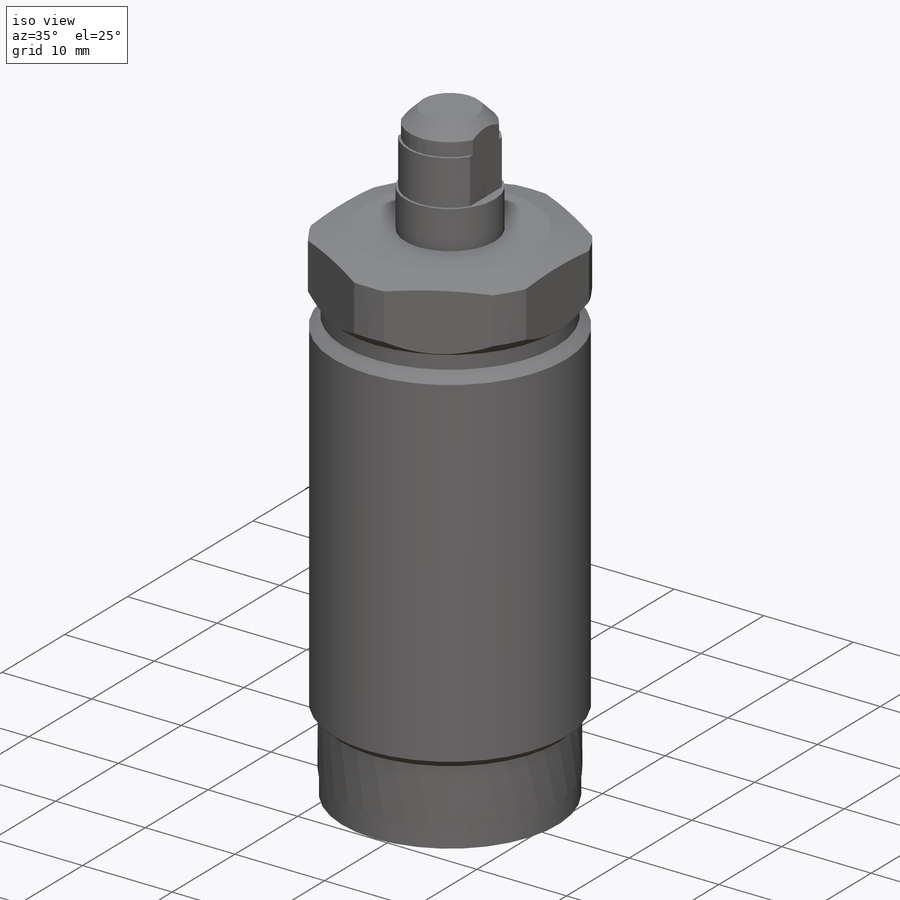
[diagram: iso view]
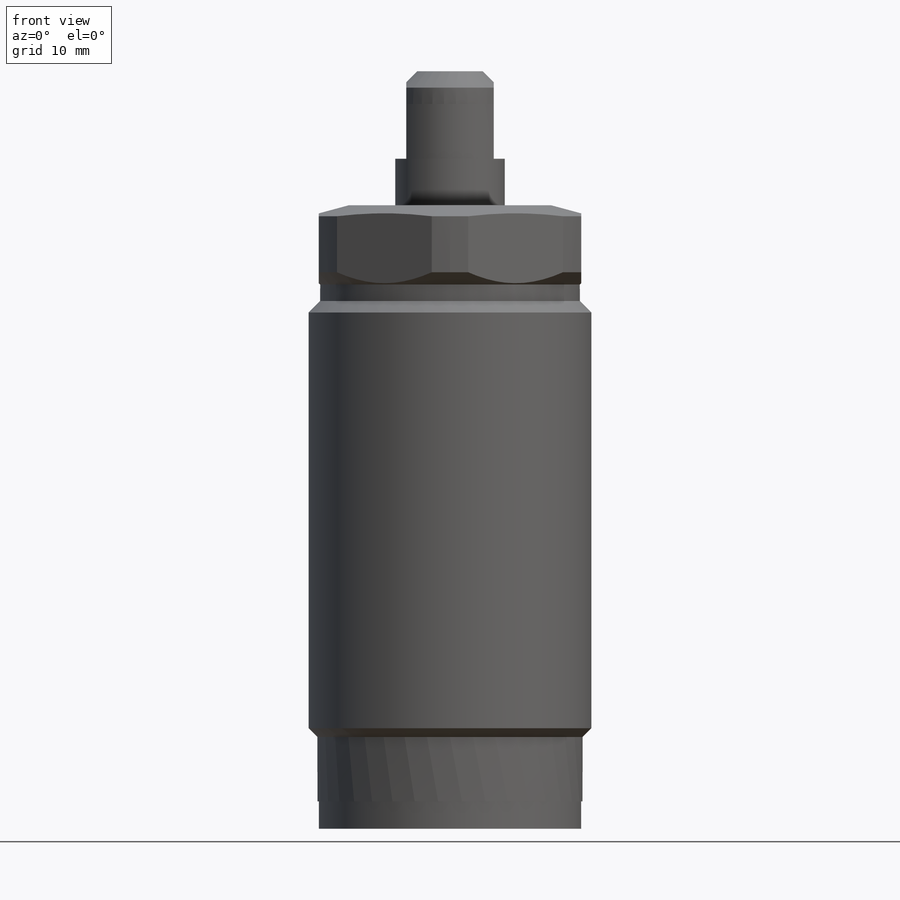
[diagram: front view]
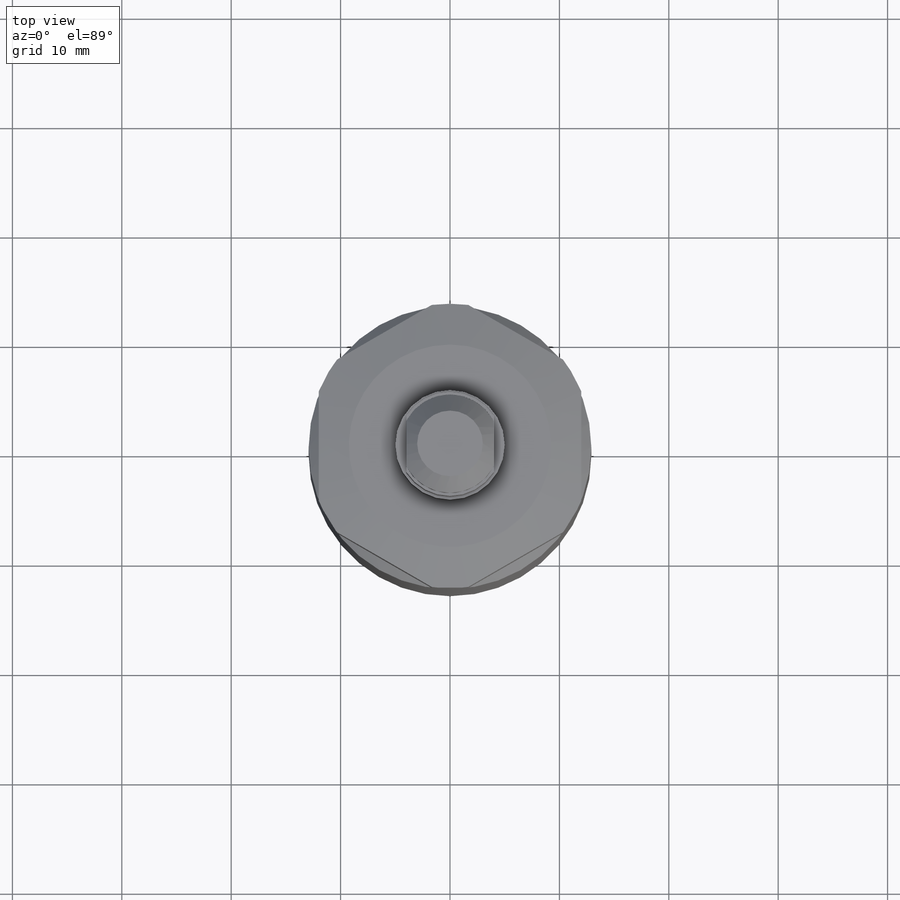
[diagram: top view]
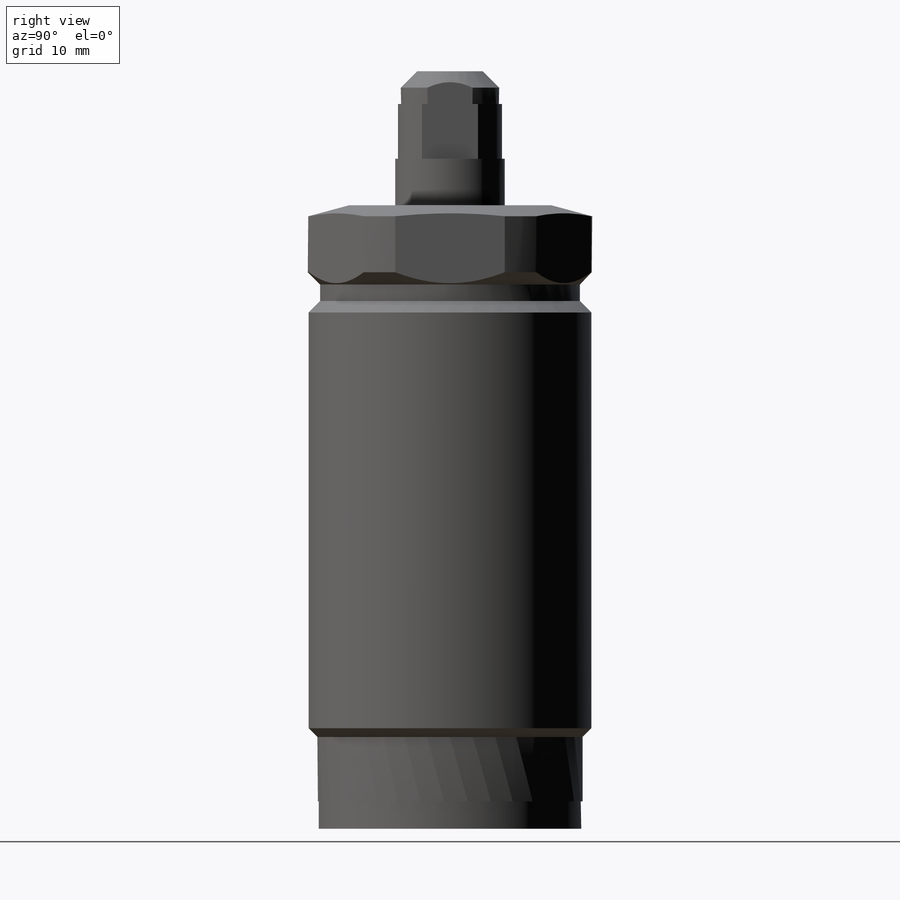
[diagram: right view]
SOLIDWORKS PART (.sldprt)
format: sldprt  version: not decoded by parser v0  size: 328,192 bytes
history: native  units: mm
features: sketch x10, cut_extrude x4, extrude x3, plane x3, cut_revolve x2, material x1, revolve x1 (+17 scaffold rows collapsed; 2 parser-record rows omitted)
feature tree (43):
  scaffold x17  (default folders/planes/origin — collapsed)
  material  "Material <not specified>"
  sketch  "Sketch1"  dims[D1=26.0mm]
  extrude  "STOCK"  Depth=54.5mm
  sketch  "Sketch2"  dims[c1.D1=~6.588016mm c1.D2=24.0mm c1.D3=26.0mm c1.D4=27.0mm c2.D1=24.0mm c3.D1=60.0deg c3.D2=~22.538968mm c4.D1=~22.160272mm c5.D1=60.0deg c5.D3=~34.078501mm c6.D3=60.0deg c6.D4=24.0mm c7.D4=60.0deg c7.D5=~36.272235mm c8.D5=60.0deg c8.D1=~33.348795mm c9.D1=60.0deg c9.D6=~31.625246mm c10.D6=30.0deg c10.D7=~38.178959mm c11.D7=30.0deg c11.D8=~33.486932mm c12.D8=30.0deg c12.D9=~33.263199mm c13.D9=30.0deg c13.D1=~15.582304mm c14.D1=120.0deg c14.D3=~9.026935mm c15.D3=90.0deg]
  cut_extrude  "HEX_HEAD"  Depth=8.5mm
  sketch  "Sketch3"  dims[c1.D1=9.25mm c1.D2=~15.144418mm c2.D2=15.0deg c2.D1=9.25mm c3.D2=3.75mm c4.D2=15.0deg]
  cut_revolve  "CROWN"  Angle=360deg
  sketch  "Sketch4"  dims[c1.D1=45.75mm c1.D2=1.5mm c1.D3=23.75mm c1.D4=11.875mm c1.D5=~15.118913mm c2.D5=45.0deg c2.D6=~8.285749mm c3.D6=45.0deg c3.D7=24.25mm c3.D8=12.125mm c3.D9=5.89mm c3.D10=5.89mm c4.D10=45.0deg c4.D1=12.925mm c4.D2=5.89mm c4.D3=~2.30927mm c5.D3=45.0deg c5.D4=45.75mm c5.D5=~1.704698mm c6.D5=45.0deg c6.D6=~5.453226mm c7.D6=45.0deg c7.D7=23.75mm c7.D1=25.85mm c7.D8=1.5mm c7.D9=24.25mm]
  cut_revolve  "OD_PROFILE"  Angle=360deg
  sketch  "Sketch5"  dims[D1=24.0mm]
  extrude  "RETAINER"  Depth=2.5mm
  plane  "STROKE"  Offset=69.25mm
  plane  "MAX_STROKE"  Offset=72.5mm
  plane  "MIN_STROKE"  Offset=66mm
  parser-record x2  (decoder bookkeeping rows leaked as tree rows — omitted from the tree; the rows remain in map.json)
  sketch  "Sketch8"  dims[c1.D1=3.0mm c1.D2=4.5mm c1.D3=~7.295826mm c2.D3=45.0deg c2.D4=3.0mm c2.D2=4.5mm c3.D4=69.25mm]
  revolve  "Revolve1"  Angle=360deg
  sketch  "Sketch9"  dims[c1.D1=8.0mm c1.D2=4.0mm c2.D1=8.0mm c2.D2=4.0mm]
  cut_extrude  "Cut-Extrude3"  Depth=26.95mm
  sketch  "Sketch10"  dims[D1=10.0mm]
  extrude  "Extrude4"  [1 undecoded]
  sketch  "Sketch13"  dims[D1=9.5mm D2=10.0mm]
  cut_extrude  "Cut-Extrude4"  Depth=5mm
  sketch  "Sketch14"
  cut_extrude  "Cut-Extrude5"  Depth=26.95mm
decode coverage: 18 of 20 modeling features carry decoded parameters
note: ~ marks probable driven/reference dimensions
note: 1 parameter value undecoded
note: suppression state not decoded; provenance and decode notes live in map.json
